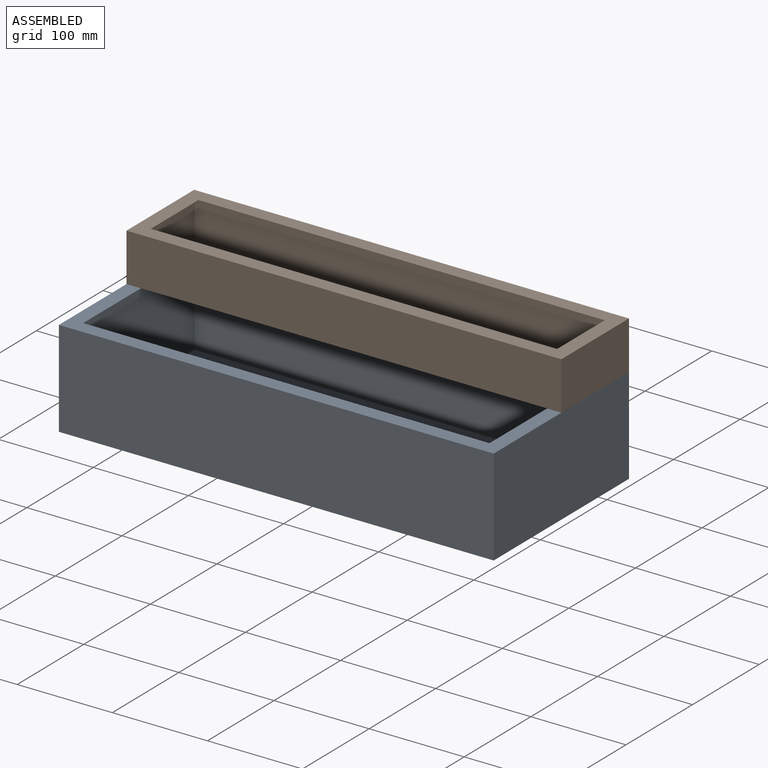
[diagram: assembled view]
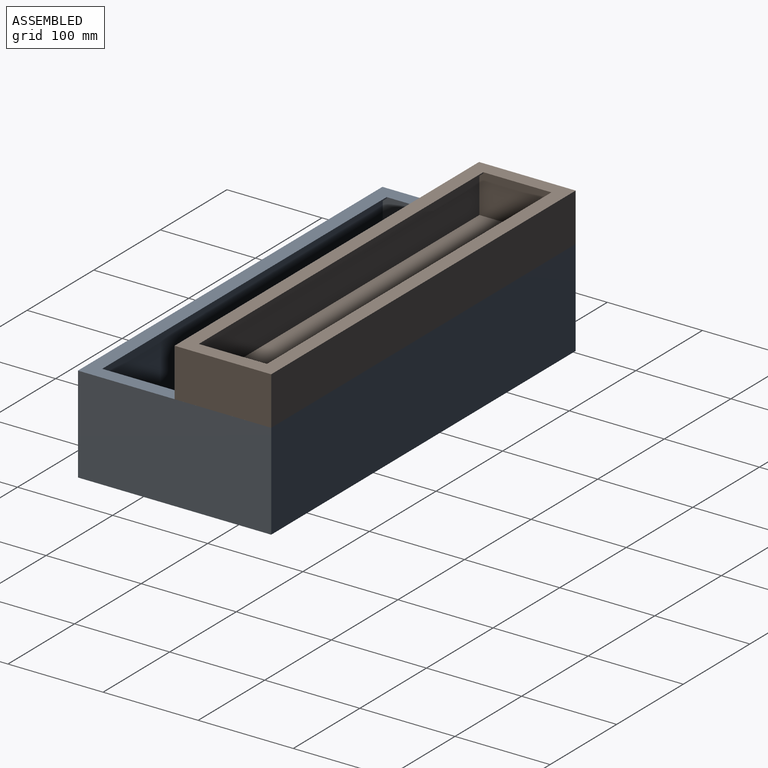
[diagram: assembled view, second angle]
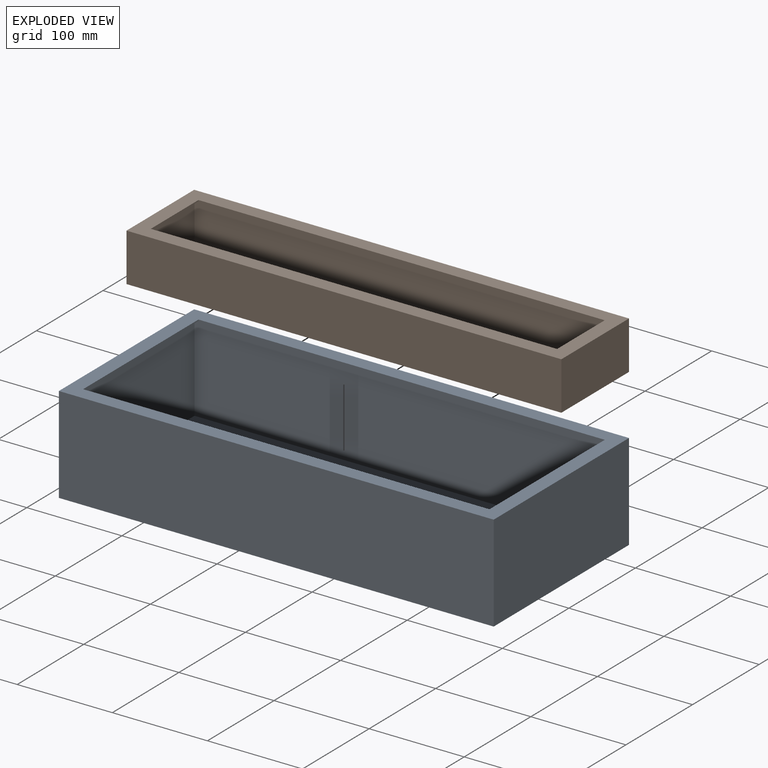
[diagram: exploded view]
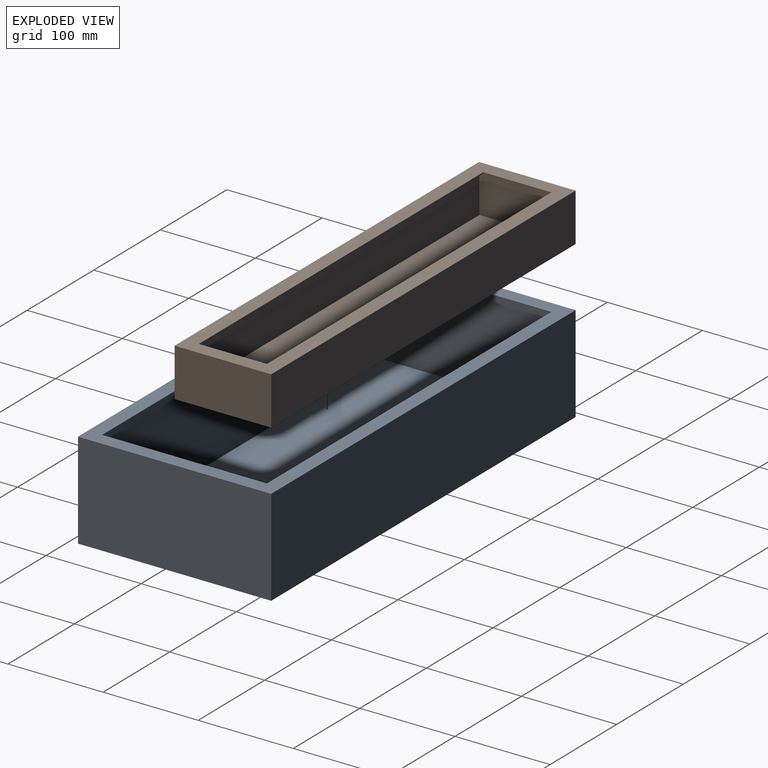
[diagram: exploded view, second angle]
ASSEMBLY  parts=2 mates=3
PART A: 16 faces, bbox 457.2x203.2x101.6 mm
  f0: plane 427.2x1.2mm, normal (0,-1,0), area 512.6mm2, adj f1,f3,f8,f14
  f1: plane 173.2x1.2mm, normal (-1,0,0), area 207.8mm2, adj f0,f2,f8,f14
  f2: plane 427.2x1.2mm, normal (0,1,0), area 512.6mm2, adj f1,f3,f8,f14
  f3: plane 173.2x1.2mm, normal (1,0,0), area 207.8mm2, adj f0,f2,f8,f14
  f4: plane 203.2x101.6mm, normal (-1,0,0), area 20645.1mm2, adj f5,f7,f8,f9
  f5: plane 457.2x101.6mm, normal (0,-1,0), area 46451.5mm2, adj f4,f6,f8,f9
  f6: plane 203.2x101.6mm, normal (1,0,0), area 20645.1mm2, adj f5,f7,f8,f9
  f7: plane 457.2x101.6mm, normal (0,1,0), area 46451.5mm2, adj f4,f6,f8,f9
  f8: plane 457.2x203.2mm, normal (0,0,1), area 18912mm2, adj f0,f1,f2,f3,f4,f5,f6,f7
  f9: plane 457.2x203.2mm, normal (0,0,-1), area 92903mm2, adj f4,f5,f6,f7
  f10: plane 200.8x99.2mm, normal (1,0,0), area 19919.4mm2, adj f11,f13,f14,f15
  f11: plane 454.8x99.2mm, normal (0,1,0), area 45116.2mm2, adj f10,f12,f14,f15
  f12: plane 200.8x99.2mm, normal (-1,0,0), area 19919.4mm2, adj f11,f13,f14,f15
  f13: plane 454.8x99.2mm, normal (0,-1,0), area 45116.2mm2, adj f10,f12,f14,f15
  f14: plane 454.8x200.8mm, normal (0,0,-1), area 17332.8mm2, adj f0,f1,f2,f3,f10,f11,f12,f13
  f15: plane 454.8x200.8mm, normal (0,0,1), area 91323.8mm2, adj f10,f11,f12,f13
PART B: 16 faces, bbox 457.2x101.6x50.8 mm
  f0: plane 427.2x1.2mm, normal (0,-1,0), area 512.6mm2, adj f1,f3,f8,f14
  f1: plane 71.6x1.2mm, normal (-1,0,0), area 85.9mm2, adj f0,f2,f8,f14
  f2: plane 427.2x1.2mm, normal (0,1,0), area 512.6mm2, adj f1,f3,f8,f14
  f3: plane 71.6x1.2mm, normal (1,0,0), area 85.9mm2, adj f0,f2,f8,f14
  f4: plane 101.6x50.8mm, normal (-1,0,0), area 5161.3mm2, adj f5,f7,f8,f9
  f5: plane 457.2x50.8mm, normal (0,-1,0), area 23225.8mm2, adj f4,f6,f8,f9
  f6: plane 101.6x50.8mm, normal (1,0,0), area 5161.3mm2, adj f5,f7,f8,f9
  f7: plane 457.2x50.8mm, normal (0,1,0), area 23225.8mm2, adj f4,f6,f8,f9
  f8: plane 457.2x101.6mm, normal (0,0,1), area 15864mm2, adj f0,f1,f2,f3,f4,f5,f6,f7
  f9: plane 457.2x101.6mm, normal (0,0,-1), area 46451.5mm2, adj f4,f5,f6,f7
  f10: plane 99.2x48.4mm, normal (1,0,0), area 4801.3mm2, adj f11,f13,f14,f15
  f11: plane 454.8x48.4mm, normal (0,1,0), area 22012.3mm2, adj f10,f12,f14,f15
  f12: plane 99.2x48.4mm, normal (-1,0,0), area 4801.3mm2, adj f11,f13,f14,f15
  f13: plane 454.8x48.4mm, normal (0,-1,0), area 22012.3mm2, adj f10,f12,f14,f15
  f14: plane 454.8x99.2mm, normal (0,0,-1), area 14528.6mm2, adj f0,f1,f2,f3,f10,f11,f12,f13
  f15: plane 454.8x99.2mm, normal (0,0,1), area 45116.2mm2, adj f10,f11,f12,f13
PLACE A t=(-50.43,19.89,43.53)mm
PLACE B t=(-50.43,70.69,145.13)mm
MATE planar B.f7 <-> A.f7  axis (0,1,0) through (178.17,121.49,195.93)mm
MATE planar B.f6 <-> A.f6  axis (1,0,0) through (178.17,70.69,170.53)mm
MATE planar A.f8 <-> B.f9  axis (0,0,1) through (-50.43,19.89,145.13)mm
